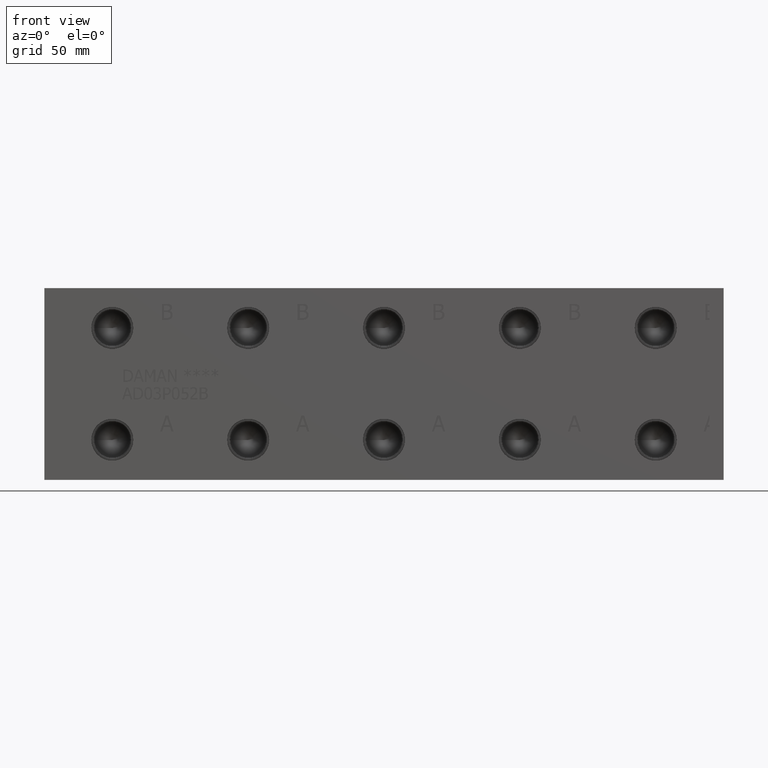
[diagram: clean part render]
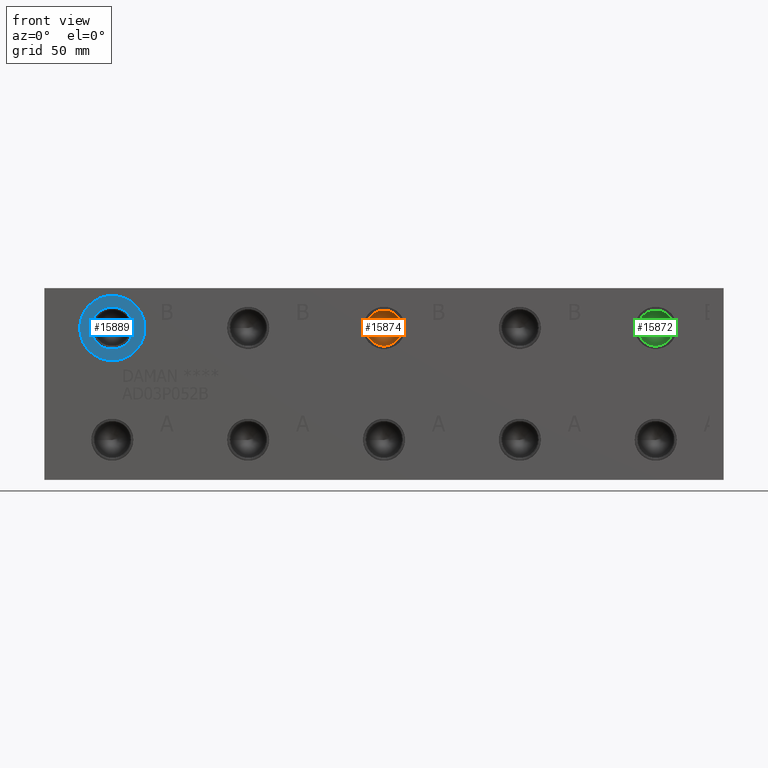
[diagram: same view with three faces highlighted in distinct colors, each labeled with its STEP entity id]
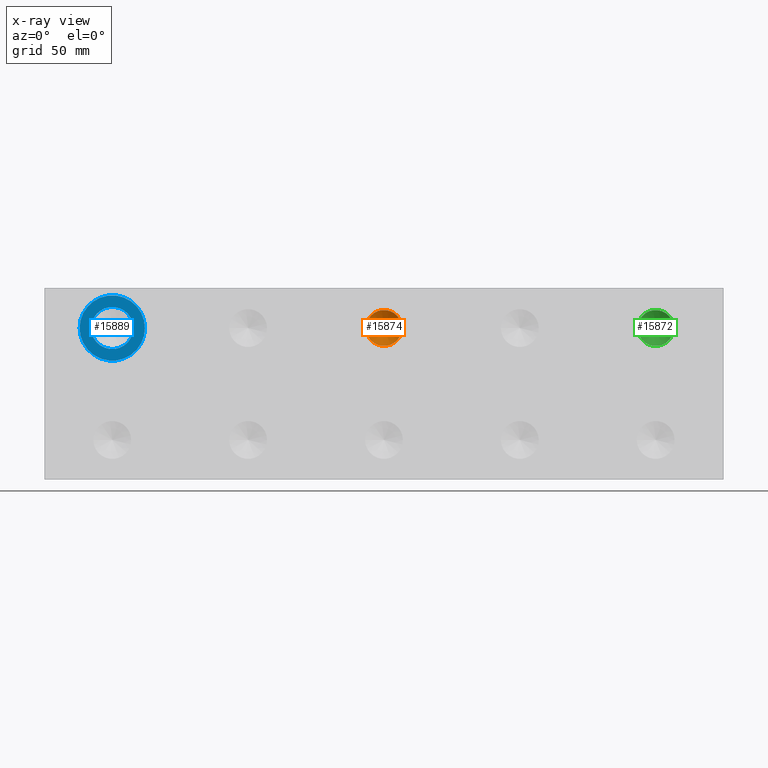
[diagram: x-ray of the same camera — body ghosted, the three highlighted faces saturated]
A machine part, front view with three faces highlighted in distinct colors.
The next image is the same camera in x-ray (body ghosted, the three faces saturated) — at least one of them is partly hidden behind the body in this view.
Their STEP definitions:

[orange] entity #15874 — the highlighted conical surface has half-angle 60 deg.
#167=CONICAL_SURFACE('',#16744,3.57505,1.0471975511966);
#437=CIRCLE('',#16745,7.1501);
#438=CIRCLE('',#16746,7.1501);
#1983=FACE_OUTER_BOUND('',#2920,.T.);
#2920=EDGE_LOOP('',(#13642,#13643,#13644,#13645));
#4370=LINE('',#27005,#5727);
#5727=VECTOR('',#19798,3.57505);
#7489=VERTEX_POINT('',#27001);
#7490=VERTEX_POINT('',#27002);
#7491=VERTEX_POINT('',#27004);
#9632=EDGE_CURVE('',#7489,#7490,#437,.T.);
#9633=EDGE_CURVE('',#7490,#7491,#4370,.T.);
#9634=EDGE_CURVE('',#7490,#7489,#438,.T.);
#13642=ORIENTED_EDGE('',*,*,#9632,.T.);
#13643=ORIENTED_EDGE('',*,*,#9633,.T.);
#13644=ORIENTED_EDGE('',*,*,#9633,.F.);
#13645=ORIENTED_EDGE('',*,*,#9634,.T.);
#15874=ADVANCED_FACE('',(#1983),#167,.F.);
#16744=AXIS2_PLACEMENT_3D('',#27000,#19794,#19795);
#16745=AXIS2_PLACEMENT_3D('',#27003,#19796,#19797);
#16746=AXIS2_PLACEMENT_3D('',#27006,#19799,#19800);
#19794=DIRECTION('center_axis',(0.,-1.,0.));
#19795=DIRECTION('ref_axis',(1.,0.,0.));
#19796=DIRECTION('center_axis',(0.,-1.,0.));
#19797=DIRECTION('ref_axis',(1.,0.,0.));
#19798=DIRECTION('',(0.866025403784439,0.5,1.06057523872491E-16));
#19799=DIRECTION('center_axis',(0.,-1.,0.));
#19800=DIRECTION('ref_axis',(1.,0.,0.));
#27000=CARTESIAN_POINT('Origin',(134.9248,22.2824560798664,60.325));
#27001=CARTESIAN_POINT('',(142.0749,20.2184,60.325));
#27002=CARTESIAN_POINT('',(127.7747,20.2184,60.325));
#27003=CARTESIAN_POINT('Origin',(134.9248,20.2184,60.325));
#27004=CARTESIAN_POINT('',(134.9248,24.3465121597327,60.325));
#27005=CARTESIAN_POINT('',(131.34975,22.2824560798664,60.325));
#27006=CARTESIAN_POINT('Origin',(134.9248,20.2184,60.325));

[blue] entity #15889 — the highlighted planar face has unit normal (0, 1, 0).
#452=CIRCLE('',#16774,12.9667);
#453=CIRCLE('',#16775,12.9667);
#454=CIRCLE('',#16777,8.382);
#455=CIRCLE('',#16778,8.382);
#809=FACE_BOUND('',#2936,.T.);
#1281=PLANE('',#16776);
#1998=FACE_OUTER_BOUND('',#2935,.T.);
#2935=EDGE_LOOP('',(#13711,#13712));
#2936=EDGE_LOOP('',(#13713,#13714));
#7511=VERTEX_POINT('',#27066);
#7512=VERTEX_POINT('',#27068);
#7513=VERTEX_POINT('',#27072);
#7514=VERTEX_POINT('',#27073);
#9662=EDGE_CURVE('',#7511,#7512,#452,.T.);
#9663=EDGE_CURVE('',#7512,#7511,#453,.T.);
#9664=EDGE_CURVE('',#7513,#7514,#454,.T.);
#9665=EDGE_CURVE('',#7514,#7513,#455,.T.);
#13711=ORIENTED_EDGE('',*,*,#9663,.F.);
#13712=ORIENTED_EDGE('',*,*,#9662,.F.);
#13713=ORIENTED_EDGE('',*,*,#9664,.T.);
#13714=ORIENTED_EDGE('',*,*,#9665,.T.);
#15889=ADVANCED_FACE('',(#1998,#809),#1281,.F.);
#16774=AXIS2_PLACEMENT_3D('',#27069,#19869,#19870);
#16775=AXIS2_PLACEMENT_3D('',#27070,#19871,#19872);
#16776=AXIS2_PLACEMENT_3D('',#27071,#19873,#19874);
#16777=AXIS2_PLACEMENT_3D('',#27074,#19875,#19876);
#16778=AXIS2_PLACEMENT_3D('',#27075,#19877,#19878);
#19869=DIRECTION('center_axis',(0.,1.,0.));
#19870=DIRECTION('ref_axis',(1.,0.,0.));
#19871=DIRECTION('center_axis',(0.,1.,0.));
#19872=DIRECTION('ref_axis',(1.,0.,0.));
#19873=DIRECTION('center_axis',(0.,1.,0.));
#19874=DIRECTION('ref_axis',(0.,0.,1.));
#19875=DIRECTION('center_axis',(0.,1.,0.));
#19876=DIRECTION('ref_axis',(1.,0.,0.));
#19877=DIRECTION('center_axis',(0.,1.,0.));
#19878=DIRECTION('ref_axis',(1.,0.,0.));
#27066=CARTESIAN_POINT('',(14.0081,0.7874,60.325));
#27068=CARTESIAN_POINT('',(39.9415,0.7874,60.325));
#27069=CARTESIAN_POINT('Origin',(26.9748,0.7874,60.325));
#27070=CARTESIAN_POINT('Origin',(26.9748,0.7874,60.325));
#27071=CARTESIAN_POINT('Origin',(35.3568,0.7874,60.325));
#27072=CARTESIAN_POINT('',(35.3568,0.7874,60.325));
#27073=CARTESIAN_POINT('',(18.5928,0.7874,60.325));
#27074=CARTESIAN_POINT('Origin',(26.9748,0.7874,60.325));
#27075=CARTESIAN_POINT('Origin',(26.9748,0.7874,60.325));

[green] entity #15872 — the highlighted conical surface has half-angle 60 deg.
#166=CONICAL_SURFACE('',#16740,3.57505,1.0471975511966);
#435=CIRCLE('',#16741,7.1501);
#436=CIRCLE('',#16742,7.1501);
#1981=FACE_OUTER_BOUND('',#2918,.T.);
#2918=EDGE_LOOP('',(#13633,#13634,#13635,#13636));
#4368=LINE('',#26996,#5725);
#5725=VECTOR('',#19788,3.57505);
#7486=VERTEX_POINT('',#26992);
#7487=VERTEX_POINT('',#26993);
#7488=VERTEX_POINT('',#26995);
#9628=EDGE_CURVE('',#7486,#7487,#435,.T.);
#9629=EDGE_CURVE('',#7487,#7488,#4368,.T.);
#9630=EDGE_CURVE('',#7487,#7486,#436,.T.);
#13633=ORIENTED_EDGE('',*,*,#9628,.T.);
#13634=ORIENTED_EDGE('',*,*,#9629,.T.);
#13635=ORIENTED_EDGE('',*,*,#9629,.F.);
#13636=ORIENTED_EDGE('',*,*,#9630,.T.);
#15872=ADVANCED_FACE('',(#1981),#166,.F.);
#16740=AXIS2_PLACEMENT_3D('',#26991,#19784,#19785);
#16741=AXIS2_PLACEMENT_3D('',#26994,#19786,#19787);
#16742=AXIS2_PLACEMENT_3D('',#26997,#19789,#19790);
#19784=DIRECTION('center_axis',(0.,-1.,0.));
#19785=DIRECTION('ref_axis',(1.,0.,0.));
#19786=DIRECTION('center_axis',(0.,-1.,0.));
#19787=DIRECTION('ref_axis',(1.,0.,0.));
#19788=DIRECTION('',(0.866025403784439,0.5,1.06057523872491E-16));
#19789=DIRECTION('center_axis',(0.,-1.,0.));
#19790=DIRECTION('ref_axis',(1.,0.,0.));
#26991=CARTESIAN_POINT('Origin',(242.8748,22.2824560798664,60.325));
#26992=CARTESIAN_POINT('',(250.0249,20.2184,60.325));
#26993=CARTESIAN_POINT('',(235.7247,20.2184,60.325));
#26994=CARTESIAN_POINT('Origin',(242.8748,20.2184,60.325));
#26995=CARTESIAN_POINT('',(242.8748,24.3465121597327,60.325));
#26996=CARTESIAN_POINT('',(239.29975,22.2824560798664,60.325));
#26997=CARTESIAN_POINT('Origin',(242.8748,20.2184,60.325));